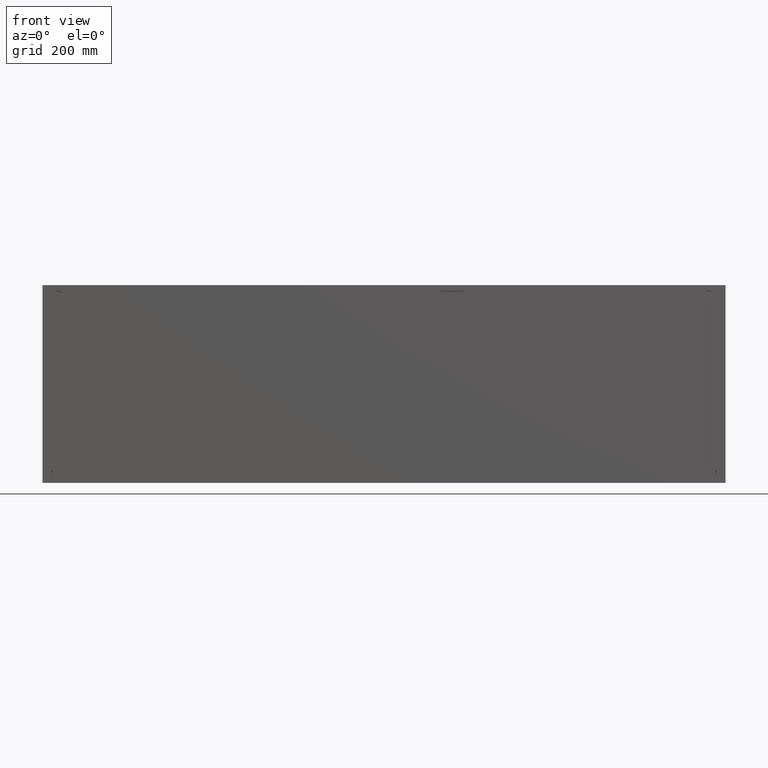
[diagram: clean part render]
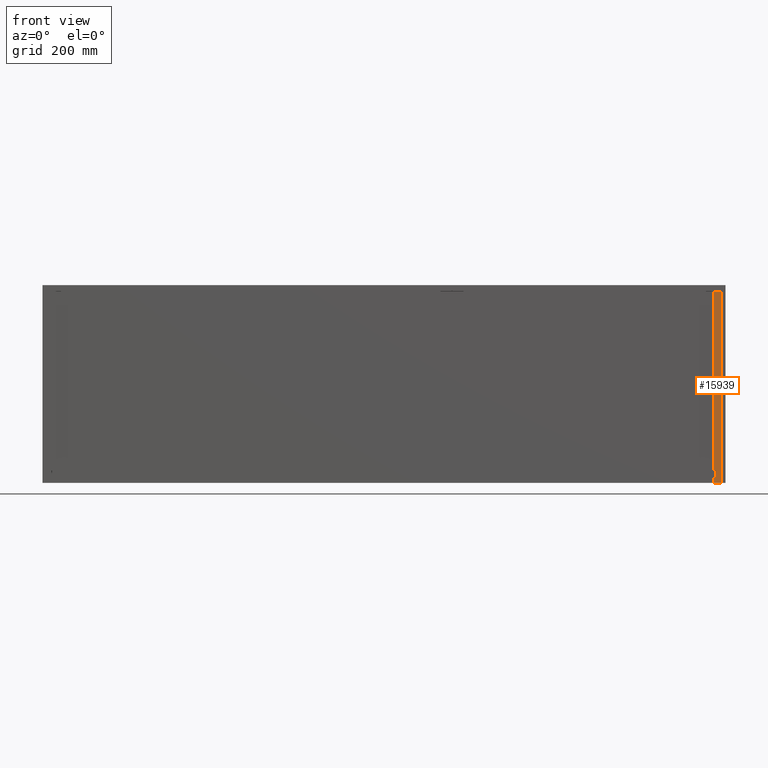
[diagram: same view with one face highlighted and labeled with its STEP entity id]
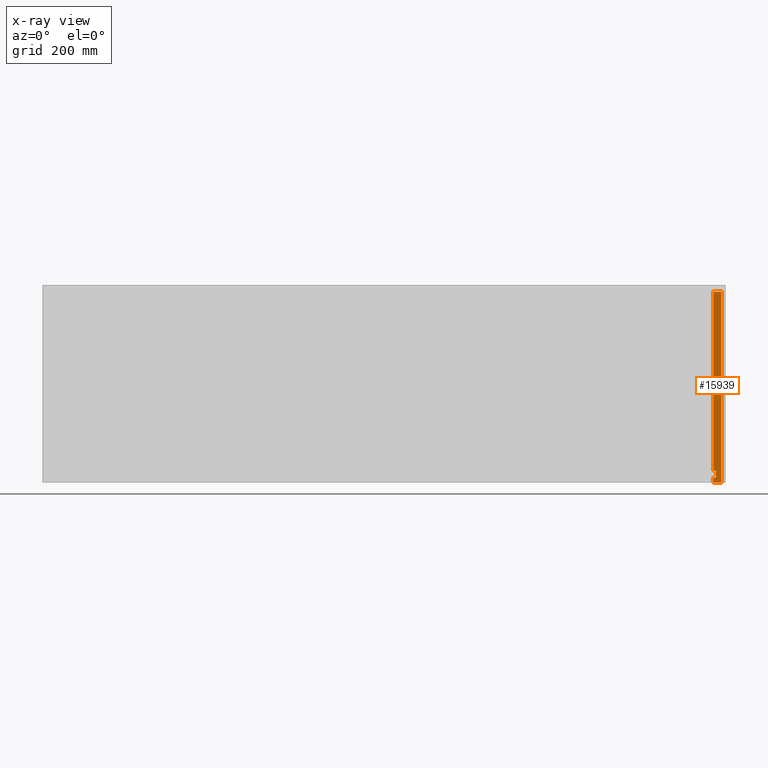
[diagram: x-ray of the same camera — body ghosted, the highlighted face saturated]
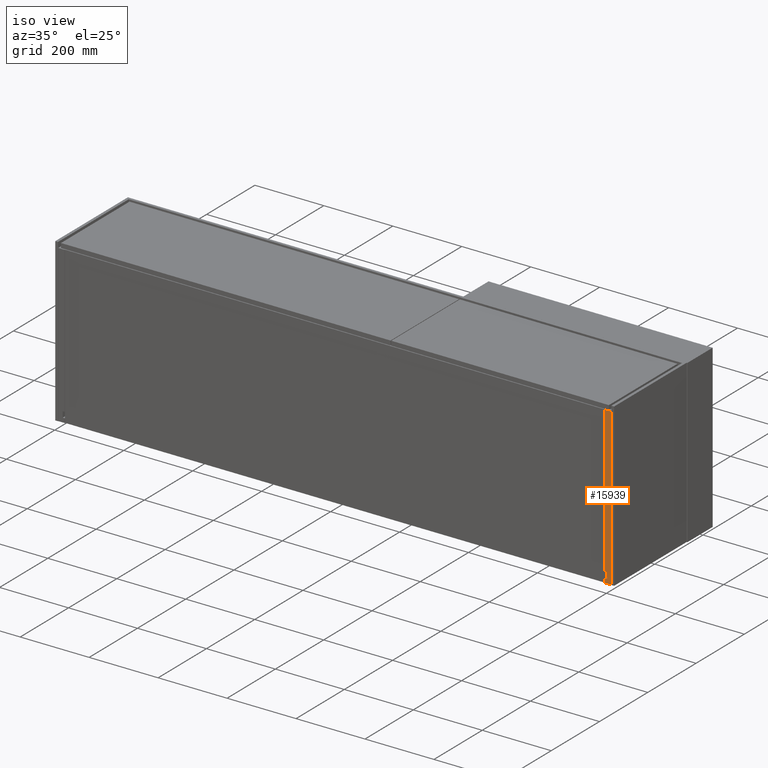
[diagram: same view with one face highlighted and labeled with its STEP entity id]
A machine part, front view. The second image highlights one B-rep face of the part: STEP entity #15939.
The next image is the same camera in x-ray: the body ghosted, the highlighted face saturated — about 0% of this face is hidden behind the body in this view.
A second angle (iso view) of the same face is appended — the face is thin or edge-on in the first view.
In plain terms, the highlighted planar face has unit normal (0, 1, 0).
Its self-contained STEP definition (entity closure, byte-faithful):
#191 = ORIENTED_EDGE ( 'NONE', *, *, #1592, .F. ) ;
#477 = ORIENTED_EDGE ( 'NONE', *, *, #11952, .F. ) ;
#512 = DIRECTION ( 'NONE',  ( -1.000000000000000000, -1.540743955509788340E-33, 2.168404344971008387E-19 ) ) ;
#564 = VECTOR ( 'NONE', #13321, 1000.000000000000000 ) ;
#787 = CARTESIAN_POINT ( 'NONE',  ( 1596.000000000000000, 0.0000000000000000000, -470.0000000000000568 ) ) ;
#1098 = ORIENTED_EDGE ( 'NONE', *, *, #10544, .F. ) ;
#1135 = CARTESIAN_POINT ( 'NONE',  ( -4.440892098500626162E-13, 0.0000000000000000000, 8.326672684688674053E-14 ) ) ;
#1592 = EDGE_CURVE ( 'NONE', #15995, #8573, #11993, .T. ) ;
#1618 = EDGE_CURVE ( 'NONE', #11046, #8573, #3331, .T. ) ;
#1873 = ORIENTED_EDGE ( 'NONE', *, *, #2919, .F. ) ;
#2197 = DIRECTION ( 'NONE',  ( 2.168404344971008387E-19, 1.704327630161179090E-31, -1.000000000000000000 ) ) ;
#2220 = VERTEX_POINT ( 'NONE', #5947 ) ;
#2470 = CARTESIAN_POINT ( 'NONE',  ( 1596.000000000000000, 0.0000000000000000000, -15.99999999999993072 ) ) ;
#2732 = LINE ( 'NONE', #7719, #14253 ) ;
#2919 = EDGE_CURVE ( 'NONE', #2220, #5577, #6740, .T. ) ;
#3331 = LINE ( 'NONE', #8319, #564 ) ;
#3524 = CARTESIAN_POINT ( 'NONE',  ( 1615.000000000000000, 0.0000000000000000000, -470.0000000000001137 ) ) ;
#3651 = VECTOR ( 'NONE', #7452, 1000.000000000000000 ) ;
#3664 = ORIENTED_EDGE ( 'NONE', *, *, #14976, .F. ) ;
#3693 = CARTESIAN_POINT ( 'NONE',  ( 1615.000000000000000, 0.0000000000000000000, -15.99999999999993072 ) ) ;
#3757 = ORIENTED_EDGE ( 'NONE', *, *, #4660, .F. ) ;
#4281 = CARTESIAN_POINT ( 'NONE',  ( 1596.000000000000000, 0.0000000000000000000, -470.0000000000000568 ) ) ;
#4426 = VECTOR ( 'NONE', #15155, 1000.000000000000000 ) ;
#4569 = EDGE_CURVE ( 'NONE', #9919, #10675, #13690, .T. ) ;
#4660 = EDGE_CURVE ( 'NONE', #11046, #2220, #5164, .T. ) ;
#4750 = VERTEX_POINT ( 'NONE', #3524 ) ;
#5164 = LINE ( 'NONE', #10155, #4426 ) ;
#5530 = VECTOR ( 'NONE', #5780, 1000.000000000000000 ) ;
#5577 = VERTEX_POINT ( 'NONE', #6577 ) ;
#5780 = DIRECTION ( 'NONE',  ( -2.168404344971008387E-19, -1.704327630161179090E-31, 1.000000000000000000 ) ) ;
#5947 = CARTESIAN_POINT ( 'NONE',  ( 1602.000000000000000, 0.0000000000000000000, -440.5000000000001137 ) ) ;
#6132 = DIRECTION ( 'NONE',  ( 1.540743955509788682E-33, 1.000000000000000000, 1.704312583833488127E-31 ) ) ;
#6196 = VECTOR ( 'NONE', #2197, 1000.000000000000000 ) ;
#6209 = CARTESIAN_POINT ( 'NONE',  ( 1596.000000000000000, 0.0000000000000000000, -470.0000000000000568 ) ) ;
#6494 = CARTESIAN_POINT ( 'NONE',  ( 1596.000000000000000, 0.0000000000000000000, -457.5000000000001705 ) ) ;
#6577 = CARTESIAN_POINT ( 'NONE',  ( 1596.000000000000000, 0.0000000000000000000, -440.5000000000001137 ) ) ;
#6740 = LINE ( 'NONE', #11721, #10486 ) ;
#7355 = FACE_OUTER_BOUND ( 'NONE', #9457, .T. ) ;
#7452 = DIRECTION ( 'NONE',  ( 1.000000000000000000, 1.540743955509788340E-33, -2.168404344971008387E-19 ) ) ;
#7719 = CARTESIAN_POINT ( 'NONE',  ( 1615.000000000000000, 0.0000000000000000000, -470.0000000000001137 ) ) ;
#8319 = CARTESIAN_POINT ( 'NONE',  ( 1602.000000000000000, 0.0000000000000000000, -457.5000000000001705 ) ) ;
#8333 = ORIENTED_EDGE ( 'NONE', *, *, #4569, .F. ) ;
#8417 = LINE ( 'NONE', #13421, #6196 ) ;
#8573 = VERTEX_POINT ( 'NONE', #6494 ) ;
#9271 = DIRECTION ( 'NONE',  ( -2.168404344971008387E-19, -1.704327630161179090E-31, 1.000000000000000000 ) ) ;
#9457 = EDGE_LOOP ( 'NONE', ( #3757, #15320, #191, #477, #3664, #8333, #1098, #1873 ) ) ;
#9919 = VERTEX_POINT ( 'NONE', #15183 ) ;
#10155 = CARTESIAN_POINT ( 'NONE',  ( 1602.000000000000000, 0.0000000000000000000, -457.5000000000001705 ) ) ;
#10486 = VECTOR ( 'NONE', #512, 1000.000000000000000 ) ;
#10544 = EDGE_CURVE ( 'NONE', #5577, #9919, #15497, .T. ) ;
#10675 = VERTEX_POINT ( 'NONE', #3693 ) ;
#11046 = VERTEX_POINT ( 'NONE', #11978 ) ;
#11127 = DIRECTION ( 'NONE',  ( -2.168404344971007905E-19, -1.704312583833488127E-31, 1.000000000000000000 ) ) ;
#11721 = CARTESIAN_POINT ( 'NONE',  ( 1602.000000000000000, 0.0000000000000000000, -440.5000000000001137 ) ) ;
#11874 = VECTOR ( 'NONE', #9271, 1000.000000000000000 ) ;
#11952 = EDGE_CURVE ( 'NONE', #4750, #15995, #2732, .T. ) ;
#11978 = CARTESIAN_POINT ( 'NONE',  ( 1602.000000000000000, 0.0000000000000000000, -457.5000000000001705 ) ) ;
#11993 = LINE ( 'NONE', #787, #5530 ) ;
#12345 = PLANE ( 'NONE',  #12472 ) ;
#12472 = AXIS2_PLACEMENT_3D ( 'NONE', #1135, #6132, #11127 ) ;
#12707 = DIRECTION ( 'NONE',  ( -1.000000000000000000, -1.540743955509788340E-33, 2.168404344971008387E-19 ) ) ;
#13321 = DIRECTION ( 'NONE',  ( -1.000000000000000000, -1.540743955509788340E-33, 2.168404344971008387E-19 ) ) ;
#13421 = CARTESIAN_POINT ( 'NONE',  ( 1615.000000000000000, 0.0000000000000000000, -15.99999999999993072 ) ) ;
#13690 = LINE ( 'NONE', #2470, #3651 ) ;
#14253 = VECTOR ( 'NONE', #12707, 1000.000000000000000 ) ;
#14976 = EDGE_CURVE ( 'NONE', #10675, #4750, #8417, .T. ) ;
#15155 = DIRECTION ( 'NONE',  ( -2.168404344971007905E-19, -1.704312583833488346E-31, 1.000000000000000000 ) ) ;
#15183 = CARTESIAN_POINT ( 'NONE',  ( 1596.000000000000000, 0.0000000000000000000, -15.99999999999993072 ) ) ;
#15320 = ORIENTED_EDGE ( 'NONE', *, *, #1618, .T. ) ;
#15497 = LINE ( 'NONE', #4281, #11874 ) ;
#15939 = ADVANCED_FACE ( 'NONE', ( #7355 ), #12345, .F. ) ;
#15995 = VERTEX_POINT ( 'NONE', #6209 ) ;